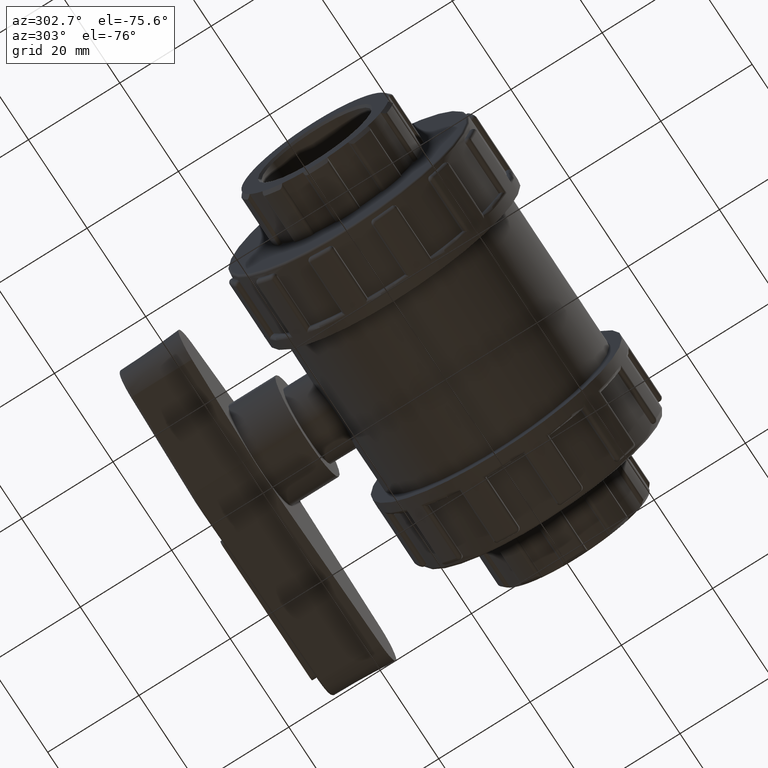
[diagram: clean part render]
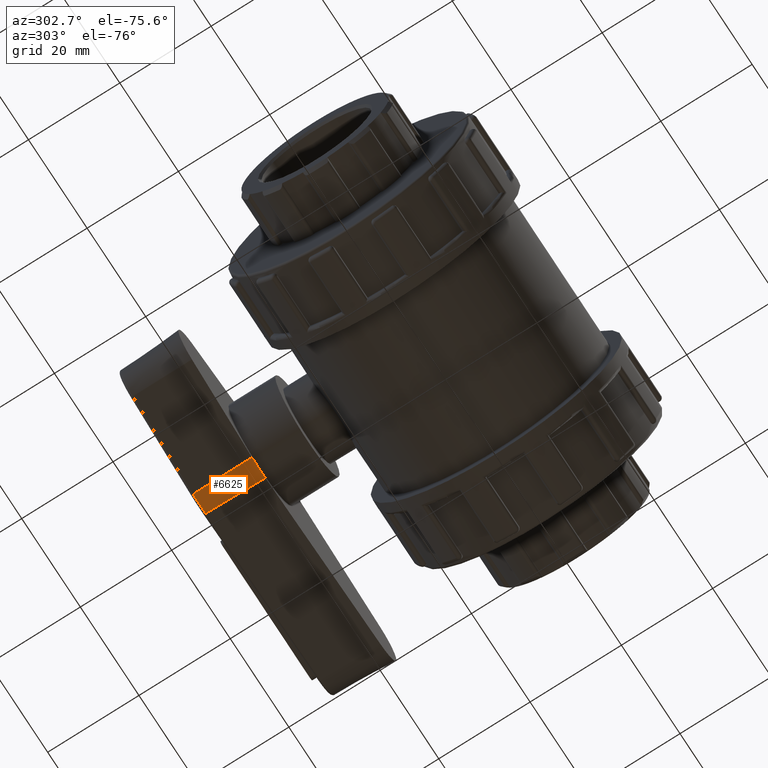
[diagram: same view with one face highlighted and labeled with its STEP entity id]
A machine part, auxiliary view. The second image highlights one B-rep face of the part: STEP entity #6625.
In plain terms, the highlighted conical surface has half-angle 3 deg.
Its self-contained STEP definition (entity closure, byte-faithful):
#340=CONICAL_SURFACE('',#7077,11.,3.);
#428=FACE_OUTER_BOUND('',#862,.T.);
#862=EDGE_LOOP('',(#4353,#4354,#4355,#4356));
#1322=LINE('',#10361,#1718);
#1323=LINE('',#10364,#1719);
#1718=VECTOR('',#8066,13.0608031018627);
#1719=VECTOR('',#8069,13.0608031018627);
#2114=CIRCLE('',#7065,11.0239554006843);
#2122=CIRCLE('',#7078,11.7075050203211);
#2631=VERTEX_POINT('',#10327);
#2633=VERTEX_POINT('',#10333);
#2641=VERTEX_POINT('',#10360);
#2642=VERTEX_POINT('',#10362);
#3281=EDGE_CURVE('',#2631,#2633,#2114,.T.);
#3293=EDGE_CURVE('',#2631,#2641,#1322,.T.);
#3294=EDGE_CURVE('',#2641,#2642,#2122,.T.);
#3295=EDGE_CURVE('',#2633,#2642,#1323,.T.);
#4353=ORIENTED_EDGE('',*,*,#3281,.F.);
#4354=ORIENTED_EDGE('',*,*,#3293,.T.);
#4355=ORIENTED_EDGE('',*,*,#3294,.T.);
#4356=ORIENTED_EDGE('',*,*,#3295,.F.);
#6625=ADVANCED_FACE('',(#428),#340,.T.);
#7065=AXIS2_PLACEMENT_3D('',#10337,#8036,#8037);
#7077=AXIS2_PLACEMENT_3D('',#10359,#8064,#8065);
#7078=AXIS2_PLACEMENT_3D('',#10363,#8067,#8068);
#8036=DIRECTION('center_axis',(0.,1.,0.));
#8037=DIRECTION('ref_axis',(-0.0581015611640688,0.,-0.998310677389708));
#8064=DIRECTION('center_axis',(3.28954970259306E-16,-1.,0.));
#8065=DIRECTION('ref_axis',(1.,3.27223628310572E-16,0.));
#8066=DIRECTION('',(0.00717824836249887,-0.998629534754574,-0.0518413451437134));
#8067=DIRECTION('center_axis',(-3.27223628310572E-16,1.,0.));
#8068=DIRECTION('ref_axis',(1.,3.27223628310572E-16,0.));
#8069=DIRECTION('',(-0.0131437333030221,-0.998629534754574,-0.0506586082588374));
#10327=CARTESIAN_POINT('',(1.51201383301156,53.5429037251342,-10.9197713732961));
#10333=CARTESIAN_POINT('',(-2.76857327414446,53.5429037251342,-10.6706417193142));
#10337=CARTESIAN_POINT('Origin',(-8.18789480661053E-15,53.5429037251342,
0.));
#10359=CARTESIAN_POINT('Origin',(-7.77156117237609E-15,54.,0.));
#10360=CARTESIAN_POINT('',(1.60576752149041,40.5,-11.5968609747539));
#10361=CARTESIAN_POINT('',(1.50872817955112,54.,-10.8960423677695));
#10362=CARTESIAN_POINT('',(-2.94024098683863,40.5,-11.3322838271973));
#10363=CARTESIAN_POINT('Origin',(-3.33066907387547E-15,40.5,0.));
#10364=CARTESIAN_POINT('',(-2.76255707762558,54.,-10.6474540803359));